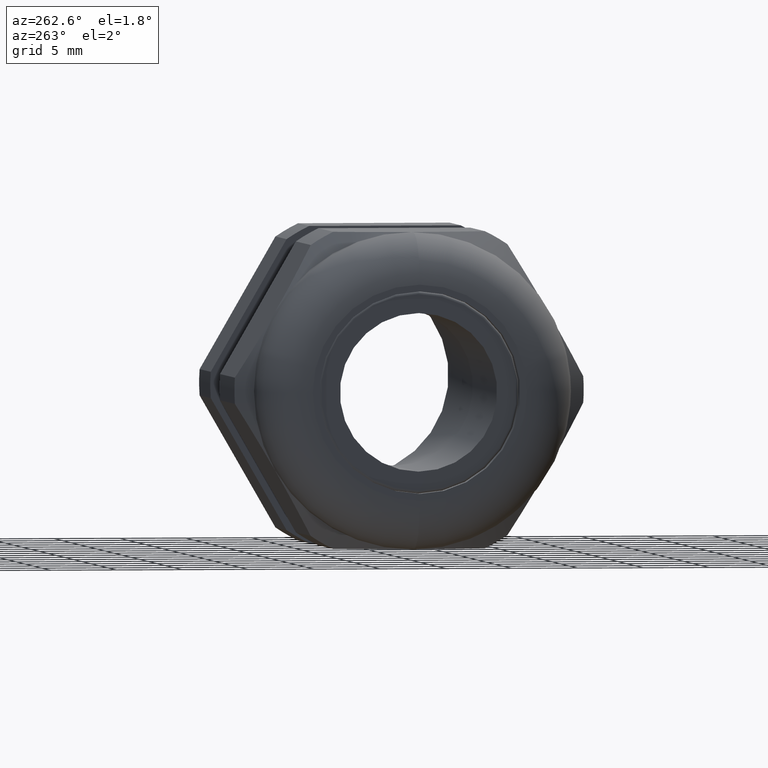
[diagram: clean part render]
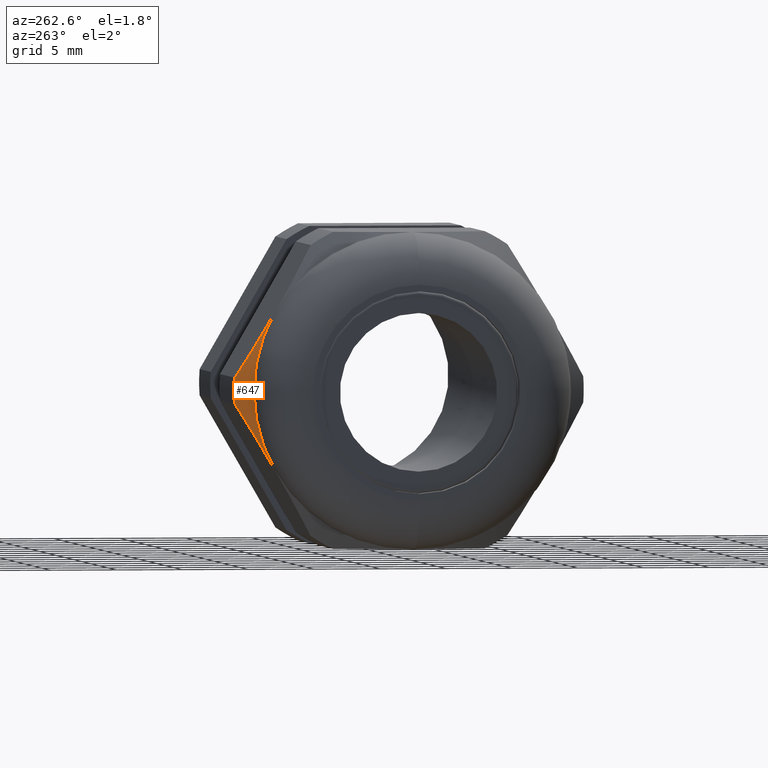
[diagram: same view with one face highlighted and labeled with its STEP entity id]
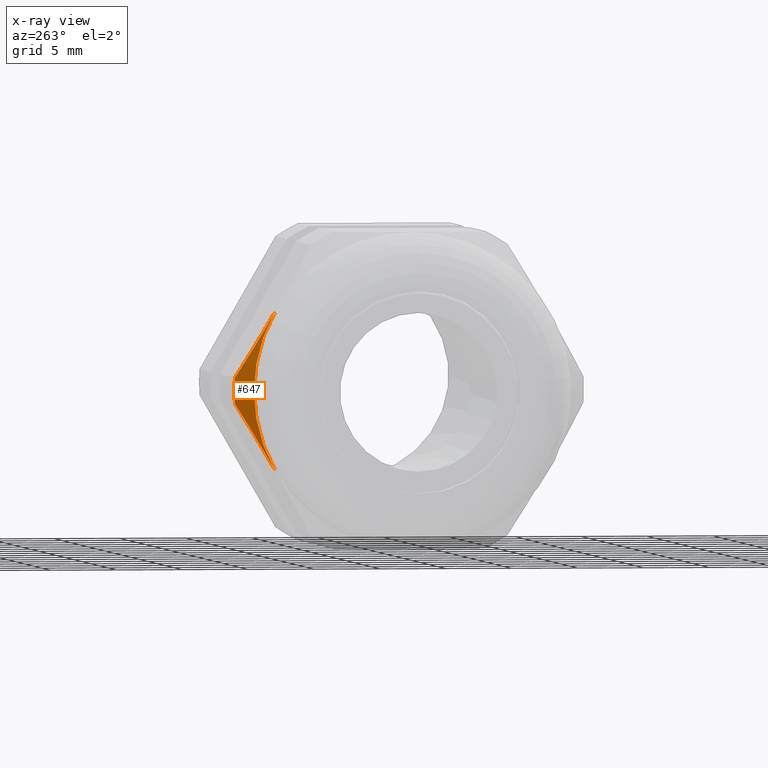
[diagram: x-ray of the same camera — body ghosted, the highlighted face saturated]
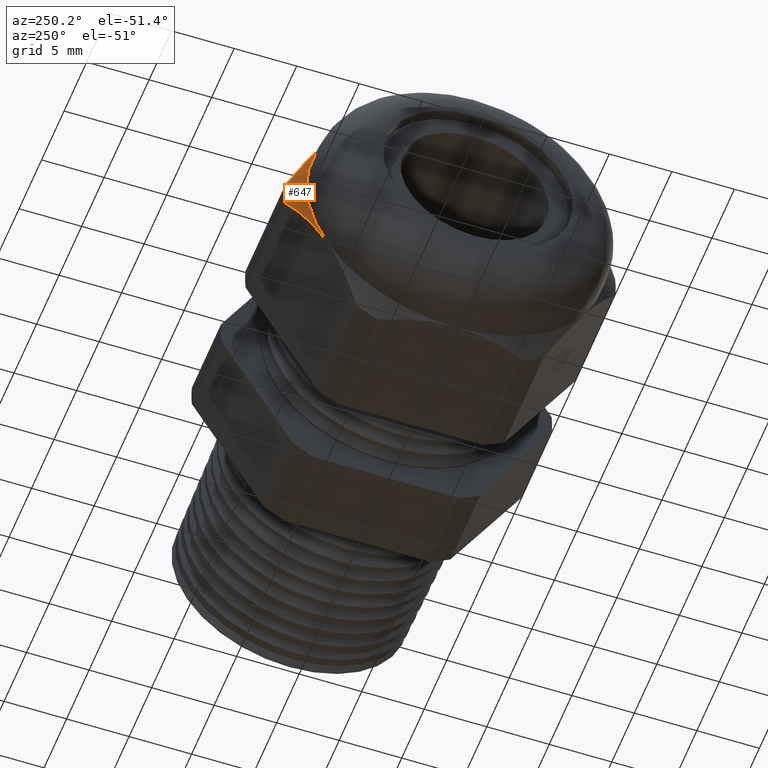
[diagram: same view with one face highlighted and labeled with its STEP entity id]
A machine part, auxiliary view. The second image highlights one B-rep face of the part: STEP entity #647.
The next image is the same camera in x-ray: the body ghosted, the highlighted face saturated — about 0% of this face is hidden behind the body in this view.
A second angle (auxiliary view) of the same face is appended — the face is thin or edge-on in the first view.
In plain terms, the highlighted conical surface has half-angle 45 deg.
Its self-contained STEP definition (entity closure, byte-faithful):
#56 = VERTEX_POINT ( 'NONE', #872 ) ;
#58 = EDGE_CURVE ( 'NONE', #56, #356, #871, .T. ) ;
#121 = EDGE_CURVE ( 'NONE', #3666, #56, #1024, .T. ) ;
#356 = VERTEX_POINT ( 'NONE', #1410 ) ;
#357 = EDGE_CURVE ( 'NONE', #3677, #356, #1406, .T. ) ;
#647 = ADVANCED_FACE ( 'NONE', ( #1802 ), #1801, .T. ) ;
#648 = EDGE_LOOP ( 'NONE', ( #649, #650, #651, #652 ) ) ;
#649 = ORIENTED_EDGE ( 'NONE', *, *, #357, .T. ) ;
#650 = ORIENTED_EDGE ( 'NONE', *, *, #58, .F. ) ;
#651 = ORIENTED_EDGE ( 'NONE', *, *, #121, .F. ) ;
#652 = ORIENTED_EDGE ( 'NONE', *, *, #3934, .F. ) ;
#859 = CARTESIAN_POINT ( 'NONE',  ( -1.173149606299212600, 0.4070319397786864000, 0.2350000000000000400 ) ) ;
#860 = CARTESIAN_POINT ( 'NONE',  ( -1.173149606299212200, 0.4119326305003309100, 0.2265117546779303900 ) ) ;
#861 = CARTESIAN_POINT ( 'NONE',  ( -1.172839471621527400, 0.4168781440523189300, 0.2179458739363668300 ) ) ;
#862 = CARTESIAN_POINT ( 'NONE',  ( -1.171607675914087900, 0.4267040029977489700, 0.2009269870148766300 ) ) ;
#863 = CARTESIAN_POINT ( 'NONE',  ( -1.170690043524309100, 0.4315793332085025600, 0.1924826673861759500 ) ) ;
#864 = CARTESIAN_POINT ( 'NONE',  ( -1.167086578253128800, 0.4460993342073096800, 0.1673332879302912000 ) ) ;
#865 = CARTESIAN_POINT ( 'NONE',  ( -1.163549912194414600, 0.4556379823307485400, 0.1508118647449735200 ) ) ;
#866 = CARTESIAN_POINT ( 'NONE',  ( -1.150006271781691700, 0.4838883643614171900, 0.1018807677346241900 ) ) ;
#867 = CARTESIAN_POINT ( 'NONE',  ( -1.137083651974949000, 0.5022367785154771000, 0.07010038218147690600 ) ) ;
#868 = CARTESIAN_POINT ( 'NONE',  ( -1.121449606299212800, 0.5202473208008776600, 0.03890520787129531800 ) ) ;
#871 = B_SPLINE_CURVE_WITH_KNOTS ( 'NONE', 3,
 ( #868, #867, #866, #865, #864, #863, #862, #861, #860, #859 ),
 .UNSPECIFIED., .F., .F.,
 ( 4, 2, 2, 2, 4 ),
 ( 2.483251536691584600E-007, 0.002951677829872987800, 0.004427392582232646300, 0.005165249958412475500, 0.005903107334592303800 ),
 .UNSPECIFIED. ) ;
#872 = CARTESIAN_POINT ( 'NONE',  ( -1.121449606299212800, 0.5202473208008776600, 0.03890520787129531800 ) ) ;
#1016 = DIRECTION ( 'NONE',  ( 0.0000000000000000000, 0.0000000000000000000, -1.000000000000000000 ) ) ;
#1018 = DIRECTION ( 'NONE',  ( 1.000000000000000000, 0.0000000000000000000, 0.0000000000000000000 ) ) ;
#1019 = CARTESIAN_POINT ( 'NONE',  ( -1.121449606299212500, 0.0000000000000000000, 0.0000000000000000000 ) ) ;
#1020 = AXIS2_PLACEMENT_3D ( 'NONE', #1019, #1018, #1016 ) ;
#1024 = CIRCLE ( 'NONE', #1020, 0.5217000000000000500 ) ;
#1402 = DIRECTION ( 'NONE',  ( 0.0000000000000000000, 0.0000000000000000000, -1.000000000000000000 ) ) ;
#1403 = DIRECTION ( 'NONE',  ( 1.000000000000000000, 0.0000000000000000000, 0.0000000000000000000 ) ) ;
#1404 = CARTESIAN_POINT ( 'NONE',  ( -1.173149606299212600, 0.0000000000000000000, 0.0000000000000000000 ) ) ;
#1405 = AXIS2_PLACEMENT_3D ( 'NONE', #1404, #1403, #1402 ) ;
#1406 = CIRCLE ( 'NONE', #1405, 0.4699999999999999700 ) ;
#1410 = CARTESIAN_POINT ( 'NONE',  ( -1.173149606299212600, 0.4070319397786864000, 0.2350000000000000400 ) ) ;
#1798 = CARTESIAN_POINT ( 'NONE',  ( -1.173149606299212600, 0.0000000000000000000, 0.0000000000000000000 ) ) ;
#1799 = AXIS2_PLACEMENT_3D ( 'NONE', #1798, #1864, #1863 ) ;
#1801 = CONICAL_SURFACE ( 'NONE', #1799, 0.4699999999999997500, 0.7853981633974501700 ) ;
#1802 = FACE_OUTER_BOUND ( 'NONE', #648, .T. ) ;
#1863 = DIRECTION ( 'NONE',  ( 0.0000000000000000000, 0.0000000000000000000, 1.000000000000000000 ) ) ;
#1864 = DIRECTION ( 'NONE',  ( 1.000000000000000000, 0.0000000000000000000, 0.0000000000000000000 ) ) ;
#2476 = CARTESIAN_POINT ( 'NONE',  ( -1.173149606299212600, 0.4070319397786864000, -0.2350000000000000400 ) ) ;
#2495 = CARTESIAN_POINT ( 'NONE',  ( -1.121449606299212500, 0.5202473208008776600, -0.03890520787129543600 ) ) ;
#2979 = CARTESIAN_POINT ( 'NONE',  ( -1.121449606299212500, 0.5202473208008776600, -0.03890520787129543600 ) ) ;
#2980 = CARTESIAN_POINT ( 'NONE',  ( -1.137103015793619900, 0.5022144712456754200, -0.07013901950615167300 ) ) ;
#2981 = CARTESIAN_POINT ( 'NONE',  ( -1.150207889359796200, 0.4835762490957484200, -0.1024213672325808800 ) ) ;
#2982 = CARTESIAN_POINT ( 'NONE',  ( -1.168203938118968400, 0.4458197490082085300, -0.1678175437001787600 ) ) ;
#2983 = CARTESIAN_POINT ( 'NONE',  ( -1.173149606299212200, 0.4266212606411439200, -0.2010703009804542800 ) ) ;
#2984 = CARTESIAN_POINT ( 'NONE',  ( -1.173149606299212600, 0.4070319397786864000, -0.2350000000000000400 ) ) ;
#2986 = B_SPLINE_CURVE_WITH_KNOTS ( 'NONE', 3,
 ( #2984, #2983, #2982, #2981, #2980, #2979 ),
 .UNSPECIFIED., .F., .F.,
 ( 4, 2, 4 ),
 ( 0.005903107334592305600, 0.008852512982428763200, 0.01180191863026522200 ),
 .UNSPECIFIED. ) ;
#3666 = VERTEX_POINT ( 'NONE', #2495 ) ;
#3677 = VERTEX_POINT ( 'NONE', #2476 ) ;
#3934 = EDGE_CURVE ( 'NONE', #3677, #3666, #2986, .T. ) ;